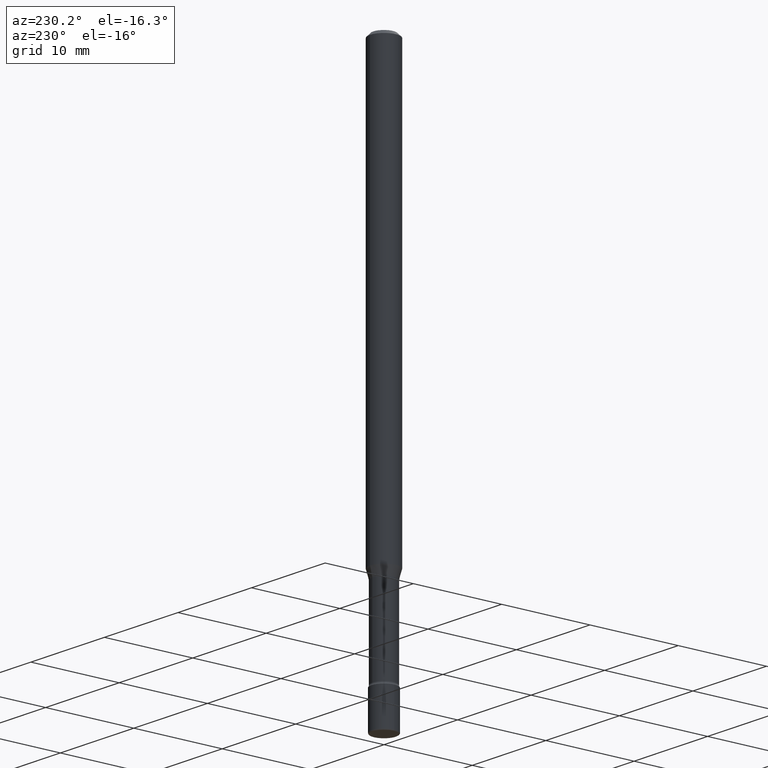
[diagram: clean part render]
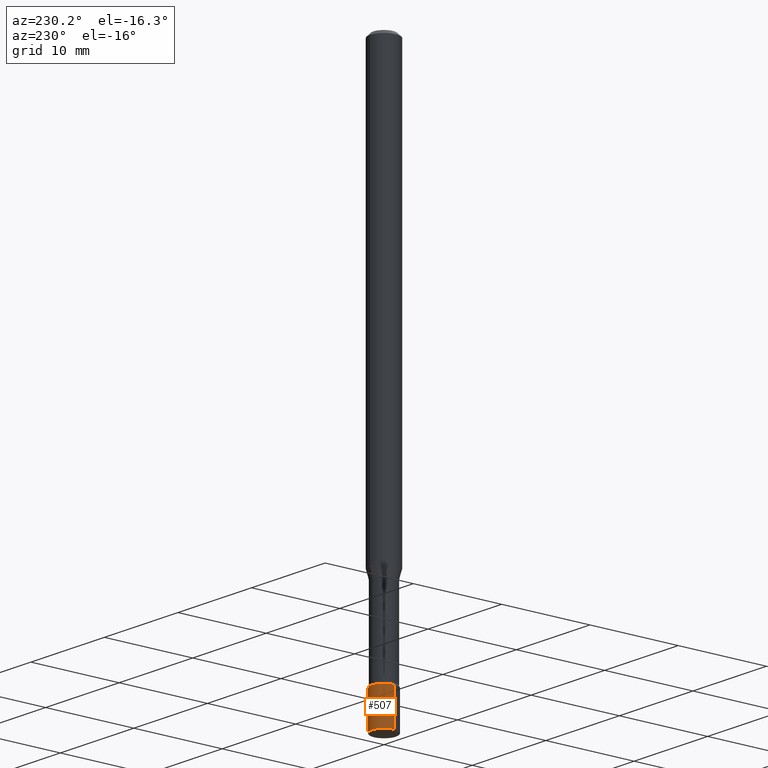
[diagram: same view with one face highlighted and labeled with its STEP entity id]
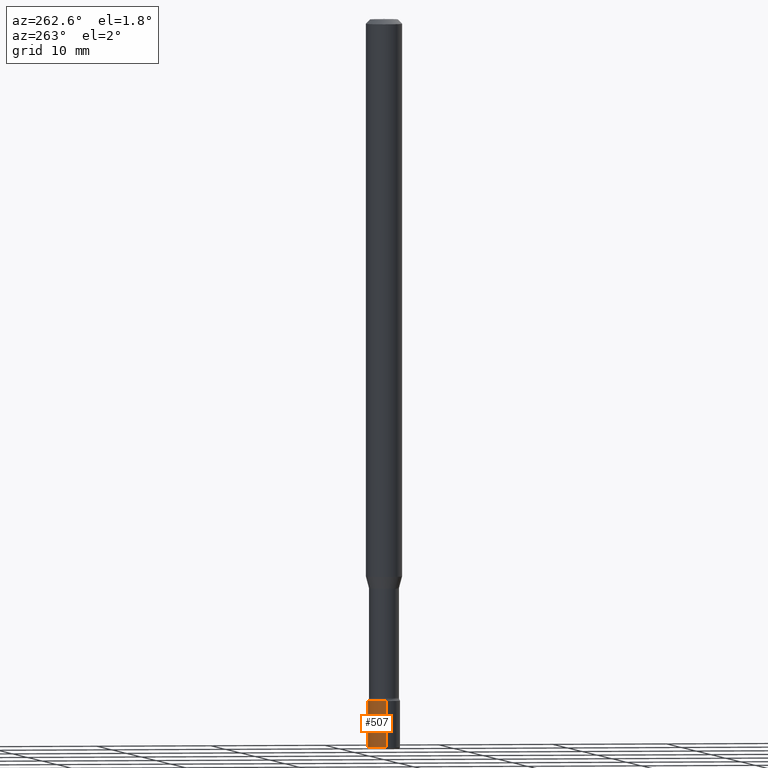
[diagram: same view with one face highlighted and labeled with its STEP entity id]
A machine part, auxiliary view. The second image highlights one B-rep face of the part: STEP entity #507.
A second angle (auxiliary view) of the same face is appended — the face is thin or edge-on in the first view.
In plain terms, the highlighted cylindrical surface (edge-blend (fillet) strip) has radius 1.397 mm, axis along (-0, 0, 1).
Its self-contained STEP definition (entity closure, byte-faithful):
#22 = VERTEX_POINT ( 'NONE', #458 ) ;
#24 = DIRECTION ( 'NONE',  ( 1.000000000000000000, -6.982962677686279332E-15, 0.000000000000000000 ) ) ;
#34 = DIRECTION ( 'NONE',  ( 1.000000000000000000, -6.982962677686262766E-15, 0.000000000000000000 ) ) ;
#57 = AXIS2_PLACEMENT_3D ( 'NONE', #131, #330, #256 ) ;
#77 = ORIENTED_EDGE ( 'NONE', *, *, #409, .F. ) ;
#88 = EDGE_CURVE ( 'NONE', #341, #562, #350, .T. ) ;
#90 = CARTESIAN_POINT ( 'NONE',  ( -0.05500000000000000028, 3.907985046680551042E-16, -2.705414299640198362E-30 ) ) ;
#92 = LINE ( 'NONE', #221, #556 ) ;
#98 = DIRECTION ( 'NONE',  ( -2.445468806185136597E-29, 3.491481338843145583E-15, 1.000000000000000000 ) ) ;
#103 = DIRECTION ( 'NONE',  ( -2.445468806185136877E-29, 3.491481338843145188E-15, 1.000000000000000000 ) ) ;
#123 = EDGE_LOOP ( 'NONE', ( #449, #513, #77, #166 ) ) ;
#131 = CARTESIAN_POINT ( 'NONE',  ( 0.000000000000000000, 0.000000000000000000, 0.000000000000000000 ) ) ;
#150 = CARTESIAN_POINT ( 'NONE',  ( 6.101444671431915719E-29, -8.711245940413648329E-15, -2.495000000000000107 ) ) ;
#161 = VECTOR ( 'NONE', #103, 39.37007874015748143 ) ;
#163 = CARTESIAN_POINT ( 'NONE',  ( -0.05499999999999988926, -8.320447435745593669E-15, -2.495000000000000107 ) ) ;
#166 = ORIENTED_EDGE ( 'NONE', *, *, #418, .F. ) ;
#173 = CIRCLE ( 'NONE', #453, 0.05500000000000000028 ) ;
#221 = CARTESIAN_POINT ( 'NONE',  ( 0.05500000000000000028, -3.840629472727446888E-16, 2.681897226687764826E-30 ) ) ;
#256 = DIRECTION ( 'NONE',  ( 1.000000000000000000, -6.982962677686266711E-15, 4.876176775795935793E-29 ) ) ;
#272 = EDGE_CURVE ( 'NONE', #22, #341, #173, .T. ) ;
#310 = VERTEX_POINT ( 'NONE', #344 ) ;
#330 = DIRECTION ( 'NONE',  ( -2.445468806185136597E-29, 3.491481338843145583E-15, 1.000000000000000000 ) ) ;
#337 = CIRCLE ( 'NONE', #403, 0.05500000000000000028 ) ;
#339 = DIRECTION ( 'NONE',  ( -2.445468806185136877E-29, 3.491481338843145188E-15, 1.000000000000000000 ) ) ;
#341 = VERTEX_POINT ( 'NONE', #163 ) ;
#344 = CARTESIAN_POINT ( 'NONE',  ( 0.05500000000000000028, -8.536671873471490084E-15, -2.334999999999999964 ) ) ;
#345 = FACE_OUTER_BOUND ( 'NONE', #123, .T. ) ;
#350 = LINE ( 'NONE', #90, #161 ) ;
#403 = AXIS2_PLACEMENT_3D ( 'NONE', #502, #98, #34 ) ;
#405 = CARTESIAN_POINT ( 'NONE',  ( -0.05500000000000000028, -8.041128928638142054E-15, -2.334999999999999964 ) ) ;
#409 = EDGE_CURVE ( 'NONE', #310, #562, #337, .T. ) ;
#418 = EDGE_CURVE ( 'NONE', #22, #310, #92, .T. ) ;
#449 = ORIENTED_EDGE ( 'NONE', *, *, #272, .T. ) ;
#453 = AXIS2_PLACEMENT_3D ( 'NONE', #150, #478, #24 ) ;
#458 = CARTESIAN_POINT ( 'NONE',  ( 0.05499999999999988926, -9.095308887686390158E-15, -2.495000000000000107 ) ) ;
#478 = DIRECTION ( 'NONE',  ( -2.445468806185136597E-29, 3.491481338843145583E-15, 1.000000000000000000 ) ) ;
#502 = CARTESIAN_POINT ( 'NONE',  ( 5.710169662442294357E-29, -8.152608926198745099E-15, -2.334999999999999964 ) ) ;
#507 = ADVANCED_FACE ( 'NONE', ( #345 ), #546, .T. ) ;
#513 = ORIENTED_EDGE ( 'NONE', *, *, #88, .T. ) ;
#546 = CYLINDRICAL_SURFACE ( 'NONE', #57, 0.05500000000000000028 ) ;
#556 = VECTOR ( 'NONE', #339, 39.37007874015748143 ) ;
#562 = VERTEX_POINT ( 'NONE', #405 ) ;